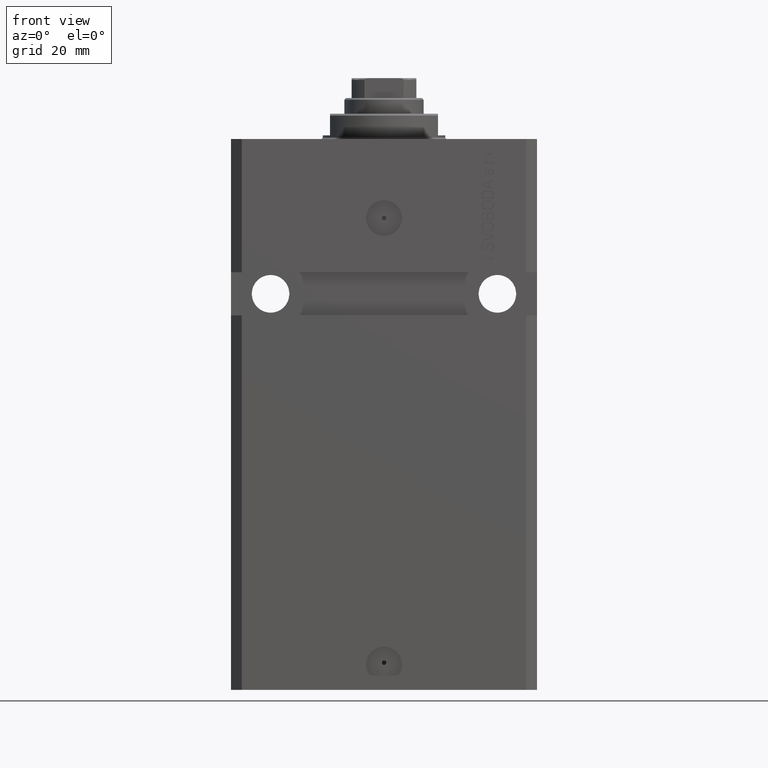
[diagram: clean part render]
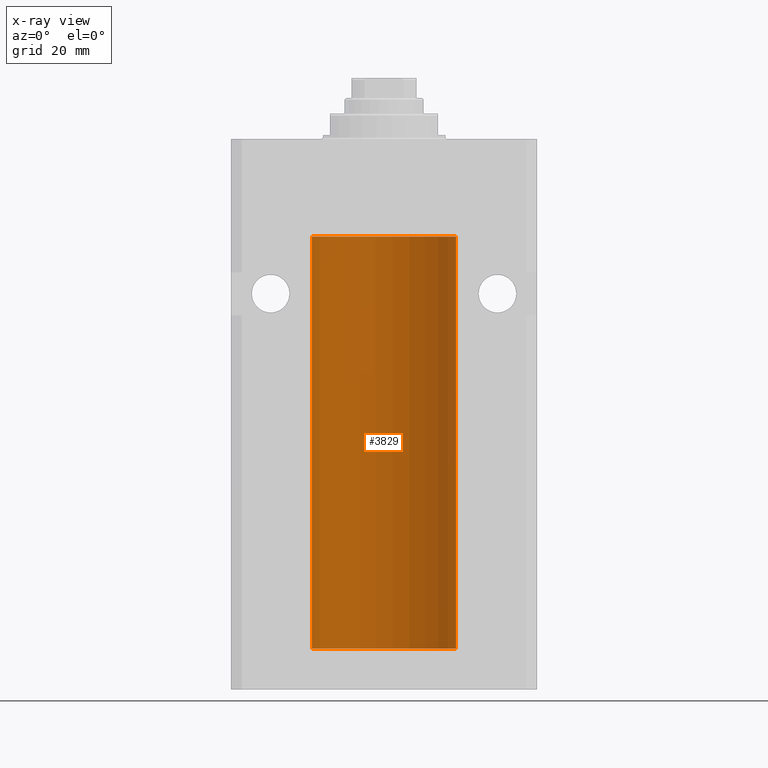
[diagram: x-ray — body ghosted, one internal face saturated and labeled with its STEP entity id]
A machine part, front view, then the same camera in x-ray: the body is ghosted and one INTERNAL B-rep face — a face not visible from any outside direction — is saturated and labeled: STEP entity #3829.
In plain terms, the highlighted cylindrical surface (partial cylindrical patch) has radius 20 mm, axis along (0, 0, 1).
Its self-contained STEP definition (entity closure, byte-faithful):
#815 = FACE_OUTER_BOUND ( 'NONE', #16209, .T. ) ;
#910 = AXIS2_PLACEMENT_3D ( 'NONE', #18024, #30171, #10960 ) ;
#1023 = CARTESIAN_POINT ( 'NONE',  ( 20.00000000000000000, 0.000000000000000000, -141.5999999999999943 ) ) ;
#1523 = VERTEX_POINT ( 'NONE', #31279 ) ;
#1793 = LINE ( 'NONE', #38538, #21256 ) ;
#1795 = EDGE_CURVE ( 'NONE', #26158, #5530, #32837, .T. ) ;
#2332 = DIRECTION ( 'NONE',  ( -0.000000000000000000, -0.000000000000000000, 1.000000000000000000 ) ) ;
#2420 = B_SPLINE_CURVE_WITH_KNOTS ( 'NONE', 3,
 ( #43355, #32156, #5896, #17091, #24622, #35329, #39468, #6136 ),
 .UNSPECIFIED., .F., .F.,
 ( 4, 2, 2, 4 ),
 ( 2.118185448276442113E-18, 0.0002443247335684271674, 0.0004886494671368522748, 0.0009772989342736434007 ),
 .UNSPECIFIED. ) ;
#2801 = EDGE_CURVE ( 'NONE', #36917, #46350, #42874, .T. ) ;
#3042 = CARTESIAN_POINT ( 'NONE',  ( -19.99766197842594195, 0.3150331617867615508, -138.4540207010250299 ) ) ;
#3578 = ORIENTED_EDGE ( 'NONE', *, *, #4206, .T. ) ;
#3829 = ADVANCED_FACE ( 'NONE', ( #815 ), #33887, .F. ) ;
#4206 = EDGE_CURVE ( 'NONE', #5530, #21078, #28626, .T. ) ;
#5530 = VERTEX_POINT ( 'NONE', #37002 ) ;
#5896 = CARTESIAN_POINT ( 'NONE',  ( 19.99947351343144319, 0.1636818329565261354, -139.6087285571564109 ) ) ;
#5976 = CARTESIAN_POINT ( 'NONE',  ( -20.00000000000000000, -1.756252550797319649E-14, -138.3749999999999716 ) ) ;
#6136 = CARTESIAN_POINT ( 'NONE',  ( 19.99023198964909298, 0.6250000000081585849, -138.9999999999990621 ) ) ;
#6215 = CARTESIAN_POINT ( 'NONE',  ( 20.00000000000000000, 0.000000000000000000, -141.5999999999999943 ) ) ;
#6542 = DIRECTION ( 'NONE',  ( 0.000000000000000000, 0.000000000000000000, 1.000000000000000000 ) ) ;
#7651 = CARTESIAN_POINT ( 'NONE',  ( -20.00000000000000000, -1.756252550797319649E-14, -138.3749999999999716 ) ) ;
#7753 = EDGE_CURVE ( 'NONE', #46350, #15095, #1793, .T. ) ;
#8543 = CARTESIAN_POINT ( 'NONE',  ( 20.00000000000010303, 3.555666311577537537E-13, -138.3749999999966178 ) ) ;
#10751 = EDGE_CURVE ( 'NONE', #1523, #26158, #2420, .T. ) ;
#10960 = DIRECTION ( 'NONE',  ( 1.000000000000000000, 0.000000000000000000, 0.000000000000000000 ) ) ;
#11209 = B_SPLINE_CURVE_WITH_KNOTS ( 'NONE', 3,
 ( #5976, #32703, #32476, #3042, #28577, #21053, #17637, #20817, #47551, #13512, #36114, #17874 ),
 .UNSPECIFIED., .F., .F.,
 ( 4, 2, 2, 2, 2, 4 ),
 ( 5.072780658798930473E-19, 0.0002442693137305545852, 0.0004885386274611087367, 0.0009770772549221578424, 0.001465615882383207273, 0.001954154509844256704 ),
 .UNSPECIFIED. ) ;
#11668 = CARTESIAN_POINT ( 'NONE',  ( -20.00000000000010303, 3.580159249456421507E-13, -139.6250000000033253 ) ) ;
#11741 = ORIENTED_EDGE ( 'NONE', *, *, #16320, .T. ) ;
#13512 = CARTESIAN_POINT ( 'NONE',  ( -19.99769349528941120, 0.3253804398728609715, -139.5585582072767750 ) ) ;
#14162 = ORIENTED_EDGE ( 'NONE', *, *, #7753, .F. ) ;
#15095 = VERTEX_POINT ( 'NONE', #11668 ) ;
#15408 = ORIENTED_EDGE ( 'NONE', *, *, #1795, .T. ) ;
#16209 = EDGE_LOOP ( 'NONE', ( #14162, #39949, #33701, #41249, #15408, #3578, #11741, #25774, #20403 ) ) ;
#16320 = EDGE_CURVE ( 'NONE', #21078, #16380, #40906, .T. ) ;
#16380 = VERTEX_POINT ( 'NONE', #18912 ) ;
#17091 = CARTESIAN_POINT ( 'NONE',  ( 19.99766100389833312, 0.3150982863324716665, -139.5459443824127561 ) ) ;
#17347 = CARTESIAN_POINT ( 'NONE',  ( -20.00000000000000000, 2.449293598294706119E-15, -141.5999999999999943 ) ) ;
#17596 = VECTOR ( 'NONE', #2332, 1000.000000000000000 ) ;
#17637 = CARTESIAN_POINT ( 'NONE',  ( -19.99023380173166231, 0.6249420416828387337, -138.8367079305639606 ) ) ;
#17874 = CARTESIAN_POINT ( 'NONE',  ( -20.00000000000010303, 3.580159249456421507E-13, -139.6250000000033253 ) ) ;
#18024 = CARTESIAN_POINT ( 'NONE',  ( 0.000000000000000000, 0.000000000000000000, -141.5999999999999943 ) ) ;
#18465 = EDGE_CURVE ( 'NONE', #36525, #15095, #11209, .T. ) ;
#18912 = CARTESIAN_POINT ( 'NONE',  ( -20.00000000000000000, 2.449293598294706119E-15, -27.10000000000000142 ) ) ;
#20217 = EDGE_CURVE ( 'NONE', #36525, #16380, #39252, .T. ) ;
#20385 = CARTESIAN_POINT ( 'NONE',  ( 20.00000000000000000, 0.000000000000000000, -141.5999999999999943 ) ) ;
#20403 = ORIENTED_EDGE ( 'NONE', *, *, #18465, .T. ) ;
#20817 = CARTESIAN_POINT ( 'NONE',  ( -19.99023018003212471, 0.6250578794725458742, -139.1628480970496753 ) ) ;
#20856 = CARTESIAN_POINT ( 'NONE',  ( -20.00000000000000000, 2.449293598294706119E-15, -141.5999999999999943 ) ) ;
#21053 = CARTESIAN_POINT ( 'NONE',  ( -19.99256581701871482, 0.5573276956901845880, -138.6734856577095059 ) ) ;
#21078 = VERTEX_POINT ( 'NONE', #28817 ) ;
#21256 = VECTOR ( 'NONE', #42189, 1000.000000000000000 ) ;
#23633 = CARTESIAN_POINT ( 'NONE',  ( 19.99253733128256272, 0.5586305947779011127, -138.6747603673525475 ) ) ;
#24622 = CARTESIAN_POINT ( 'NONE',  ( 19.99638788807192924, 0.3844440352705415509, -139.4994805898647883 ) ) ;
#25172 = LINE ( 'NONE', #6215, #17596 ) ;
#25774 = ORIENTED_EDGE ( 'NONE', *, *, #20217, .F. ) ;
#26158 = VERTEX_POINT ( 'NONE', #37640 ) ;
#26590 = CARTESIAN_POINT ( 'NONE',  ( 0.000000000000000000, 0.000000000000000000, -141.5999999999999943 ) ) ;
#28577 = CARTESIAN_POINT ( 'NONE',  ( -19.99638934703457238, 0.3843678041337506568, -138.5004636297809952 ) ) ;
#28626 = LINE ( 'NONE', #20385, #46033 ) ;
#28673 = CARTESIAN_POINT ( 'NONE',  ( 0.000000000000000000, 0.000000000000000000, -27.10000000000000142 ) ) ;
#28817 = CARTESIAN_POINT ( 'NONE',  ( 20.00000000000000000, 0.000000000000000000, -27.10000000000000142 ) ) ;
#30171 = DIRECTION ( 'NONE',  ( 0.000000000000000000, 0.000000000000000000, 1.000000000000000000 ) ) ;
#30242 = DIRECTION ( 'NONE',  ( 1.000000000000000000, 0.000000000000000000, 0.000000000000000000 ) ) ;
#31279 = CARTESIAN_POINT ( 'NONE',  ( 20.00000000000000000, -2.179639976041341418E-15, -139.6249999999999716 ) ) ;
#32058 = AXIS2_PLACEMENT_3D ( 'NONE', #26590, #42599, #30242 ) ;
#32156 = CARTESIAN_POINT ( 'NONE',  ( 20.00000000000000355, 0.08261455565448021232, -139.6249999999999716 ) ) ;
#32184 = DIRECTION ( 'NONE',  ( -0.000000000000000000, -0.000000000000000000, 1.000000000000000000 ) ) ;
#32476 = CARTESIAN_POINT ( 'NONE',  ( -19.99947377218718003, 0.1636439183262808073, -138.3912636400466170 ) ) ;
#32703 = CARTESIAN_POINT ( 'NONE',  ( -20.00000000000000711, 0.08259581631025549042, -138.3749999999999716 ) ) ;
#32837 = B_SPLINE_CURVE_WITH_KNOTS ( 'NONE', 3,
 ( #41886, #37984, #23633, #34320, #38471, #8543 ),
 .UNSPECIFIED., .F., .F.,
 ( 4, 2, 4 ),
 ( 0.0009772989342736434007, 0.001465726722058881748, 0.001954154509844120095 ),
 .UNSPECIFIED. ) ;
#33701 = ORIENTED_EDGE ( 'NONE', *, *, #34633, .T. ) ;
#33887 = CYLINDRICAL_SURFACE ( 'NONE', #32058, 20.00000000000000000 ) ;
#34320 = CARTESIAN_POINT ( 'NONE',  ( 19.99769474220010679, 0.3253030616682487941, -138.4414063389762646 ) ) ;
#34633 = EDGE_CURVE ( 'NONE', #36917, #1523, #25172, .T. ) ;
#35218 = DIRECTION ( 'NONE',  ( -0.000000000000000000, -0.000000000000000000, 1.000000000000000000 ) ) ;
#35329 = CARTESIAN_POINT ( 'NONE',  ( 19.99256353007439202, 0.5574106582031183033, -139.3263903518010522 ) ) ;
#36114 = CARTESIAN_POINT ( 'NONE',  ( -19.99999999999999645, 0.1631688615953306720, -139.6249999999998010 ) ) ;
#36525 = VERTEX_POINT ( 'NONE', #7651 ) ;
#36917 = VERTEX_POINT ( 'NONE', #1023 ) ;
#37002 = CARTESIAN_POINT ( 'NONE',  ( 20.00000000000010303, 3.555666311577537537E-13, -138.3749999999966178 ) ) ;
#37640 = CARTESIAN_POINT ( 'NONE',  ( 19.99023198964909298, 0.6250000000081585849, -138.9999999999990621 ) ) ;
#37984 = CARTESIAN_POINT ( 'NONE',  ( 19.99023198964935588, 0.6249999999995818900, -138.8369638477980459 ) ) ;
#38471 = CARTESIAN_POINT ( 'NONE',  ( 19.99999999999999645, 0.1631318418333188858, -138.3750000000001421 ) ) ;
#38538 = CARTESIAN_POINT ( 'NONE',  ( -20.00000000000000000, 2.449293598294706119E-15, -141.5999999999999943 ) ) ;
#39252 = LINE ( 'NONE', #17347, #41013 ) ;
#39468 = CARTESIAN_POINT ( 'NONE',  ( 19.99023198964934167, 0.6250000000002770006, -139.1631101482932422 ) ) ;
#39949 = ORIENTED_EDGE ( 'NONE', *, *, #2801, .F. ) ;
#40906 = CIRCLE ( 'NONE', #47126, 20.00000000000000000 ) ;
#41013 = VECTOR ( 'NONE', #32184, 1000.000000000000000 ) ;
#41249 = ORIENTED_EDGE ( 'NONE', *, *, #10751, .T. ) ;
#41886 = CARTESIAN_POINT ( 'NONE',  ( 19.99023198964909298, 0.6250000000081585849, -138.9999999999990621 ) ) ;
#42189 = DIRECTION ( 'NONE',  ( -0.000000000000000000, -0.000000000000000000, 1.000000000000000000 ) ) ;
#42599 = DIRECTION ( 'NONE',  ( -0.000000000000000000, -0.000000000000000000, 1.000000000000000000 ) ) ;
#42874 = CIRCLE ( 'NONE', #910, 20.00000000000000000 ) ;
#43355 = CARTESIAN_POINT ( 'NONE',  ( 20.00000000000000000, -2.179639976041341418E-15, -139.6249999999999716 ) ) ;
#43527 = DIRECTION ( 'NONE',  ( 1.000000000000000000, 0.000000000000000000, 0.000000000000000000 ) ) ;
#46033 = VECTOR ( 'NONE', #35218, 1000.000000000000000 ) ;
#46350 = VERTEX_POINT ( 'NONE', #20856 ) ;
#47126 = AXIS2_PLACEMENT_3D ( 'NONE', #28673, #6542, #43527 ) ;
#47551 = CARTESIAN_POINT ( 'NONE',  ( -19.99253506710755346, 0.5587120480776691656, -139.3251162083025463 ) ) ;